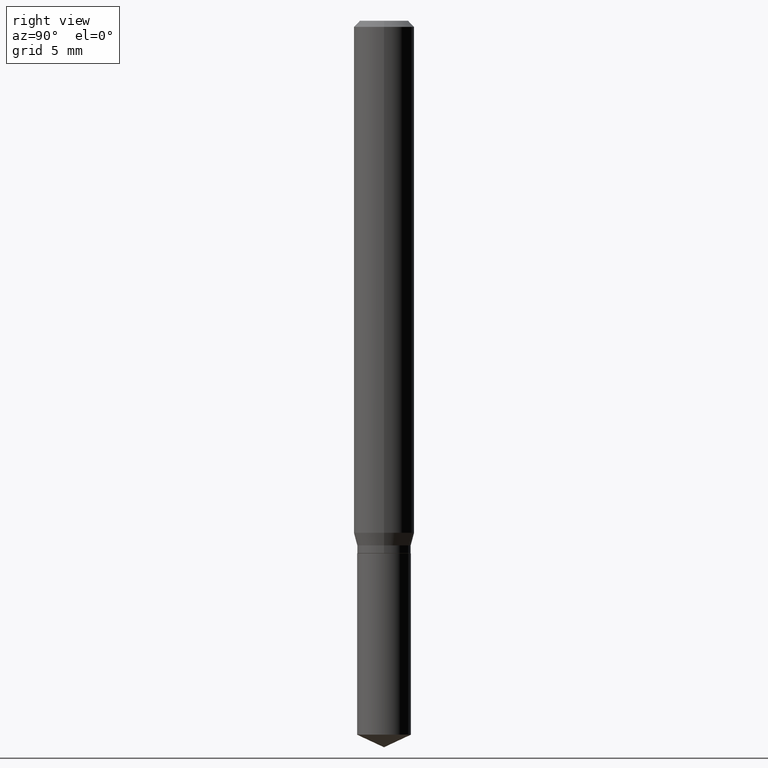
[diagram: clean part render]
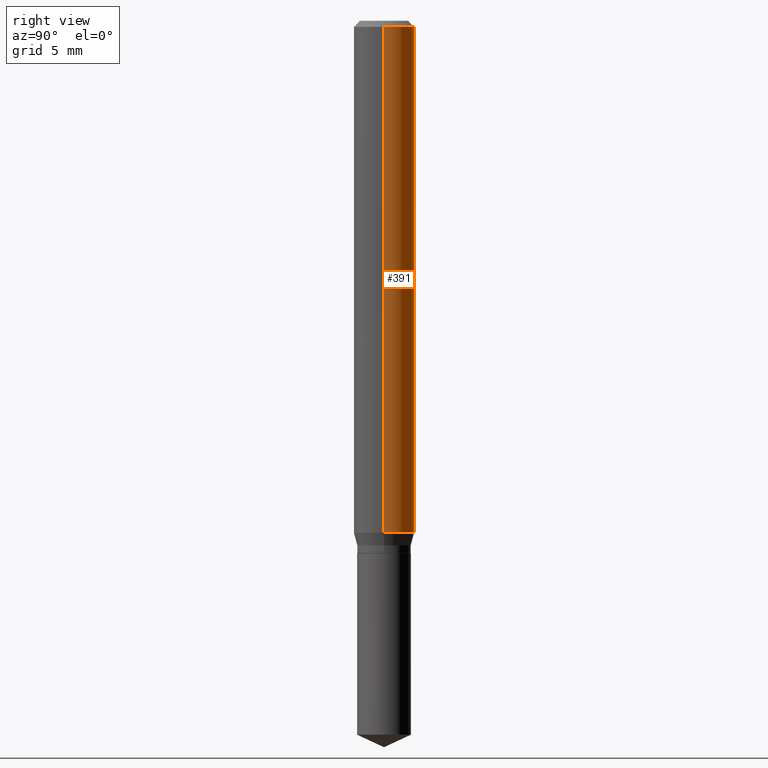
[diagram: same view with one face highlighted and labeled with its STEP entity id]
A machine part, right view. The second image highlights one B-rep face of the part: STEP entity #391.
In plain terms, the highlighted cylindrical surface (edge-blend (fillet) strip) has radius 1.5875 mm, axis along (-0, 0, 1).
Its self-contained STEP definition (entity closure, byte-faithful):
#3 = DIRECTION ( 'NONE',  ( -2.445468806185136597E-29, 3.491481338843145583E-15, 1.000000000000000000 ) ) ;
#10 = LINE ( 'NONE', #318, #384 ) ;
#15 = EDGE_CURVE ( 'NONE', #298, #157, #272, .T. ) ;
#37 = CYLINDRICAL_SURFACE ( 'NONE', #360, 0.06250000000000006939 ) ;
#69 = DIRECTION ( 'NONE',  ( 1.000000000000000000, -6.982962677686264344E-15, 0.000000000000000000 ) ) ;
#78 = DIRECTION ( 'NONE',  ( 1.000000000000000000, -6.982962677686266711E-15, 0.000000000000000000 ) ) ;
#111 = DIRECTION ( 'NONE',  ( 1.000000000000000000, -6.982962677686266711E-15, 4.876176775795935793E-29 ) ) ;
#132 = EDGE_CURVE ( 'NONE', #344, #298, #173, .T. ) ;
#136 = CARTESIAN_POINT ( 'NONE',  ( -0.06250000000000000000, -1.423287065576251094E-15, -0.01250000000000008223 ) ) ;
#138 = CIRCLE ( 'NONE', #257, 0.06250000000000012490 ) ;
#157 = VERTEX_POINT ( 'NONE', #136 ) ;
#173 = LINE ( 'NONE', #440, #316 ) ;
#256 = ORIENTED_EDGE ( 'NONE', *, *, #382, .T. ) ;
#257 = AXIS2_PLACEMENT_3D ( 'NONE', #261, #409, #69 ) ;
#261 = CARTESIAN_POINT ( 'NONE',  ( 2.585290060909303846E-29, -3.691109034117089831E-15, -1.057175644347017718 ) ) ;
#268 = EDGE_LOOP ( 'NONE', ( #256, #277, #462, #485 ) ) ;
#272 = CIRCLE ( 'NONE', #287, 0.06250000000000000000 ) ;
#277 = ORIENTED_EDGE ( 'NONE', *, *, #457, .T. ) ;
#287 = AXIS2_PLACEMENT_3D ( 'NONE', #393, #312, #78 ) ;
#298 = VERTEX_POINT ( 'NONE', #366 ) ;
#303 = VERTEX_POINT ( 'NONE', #367 ) ;
#311 = DIRECTION ( 'NONE',  ( -2.445468806185136877E-29, 3.491481338843145188E-15, 1.000000000000000000 ) ) ;
#312 = DIRECTION ( 'NONE',  ( -2.445468806185136597E-29, 3.491481338843145583E-15, 1.000000000000000000 ) ) ;
#316 = VECTOR ( 'NONE', #477, 39.37007874015748143 ) ;
#318 = CARTESIAN_POINT ( 'NONE',  ( -0.06250000000000006939, 4.440892098500631092E-16, -3.074334431409319267E-30 ) ) ;
#344 = VERTEX_POINT ( 'NONE', #377 ) ;
#360 = AXIS2_PLACEMENT_3D ( 'NONE', #449, #3, #111 ) ;
#366 = CARTESIAN_POINT ( 'NONE',  ( 0.06250000000000000000, -4.800786840909312308E-16, -0.01250000000000008223 ) ) ;
#367 = CARTESIAN_POINT ( 'NONE',  ( -0.06250000000000012490, -3.247019824267026820E-15, -1.057175644347017718 ) ) ;
#373 = FACE_OUTER_BOUND ( 'NONE', #268, .T. ) ;
#377 = CARTESIAN_POINT ( 'NONE',  ( 0.06250000000000012490, -4.127544201472483867E-15, -1.057175644347017718 ) ) ;
#382 = EDGE_CURVE ( 'NONE', #344, #303, #138, .T. ) ;
#384 = VECTOR ( 'NONE', #311, 39.37007874015748143 ) ;
#391 = ADVANCED_FACE ( 'NONE', ( #373 ), #37, .T. ) ;
#393 = CARTESIAN_POINT ( 'NONE',  ( 3.056836007731440977E-31, -4.364351673553961068E-17, -0.01250000000000008223 ) ) ;
#409 = DIRECTION ( 'NONE',  ( -2.445468806185136597E-29, 3.491481338843145583E-15, 1.000000000000000000 ) ) ;
#440 = CARTESIAN_POINT ( 'NONE',  ( 0.06250000000000006939, -4.364351673553921624E-16, 3.047610484872463374E-30 ) ) ;
#449 = CARTESIAN_POINT ( 'NONE',  ( 0.000000000000000000, 0.000000000000000000, 0.000000000000000000 ) ) ;
#457 = EDGE_CURVE ( 'NONE', #303, #157, #10, .T. ) ;
#462 = ORIENTED_EDGE ( 'NONE', *, *, #15, .F. ) ;
#477 = DIRECTION ( 'NONE',  ( -2.445468806185136877E-29, 3.491481338843145188E-15, 1.000000000000000000 ) ) ;
#485 = ORIENTED_EDGE ( 'NONE', *, *, #132, .F. ) ;